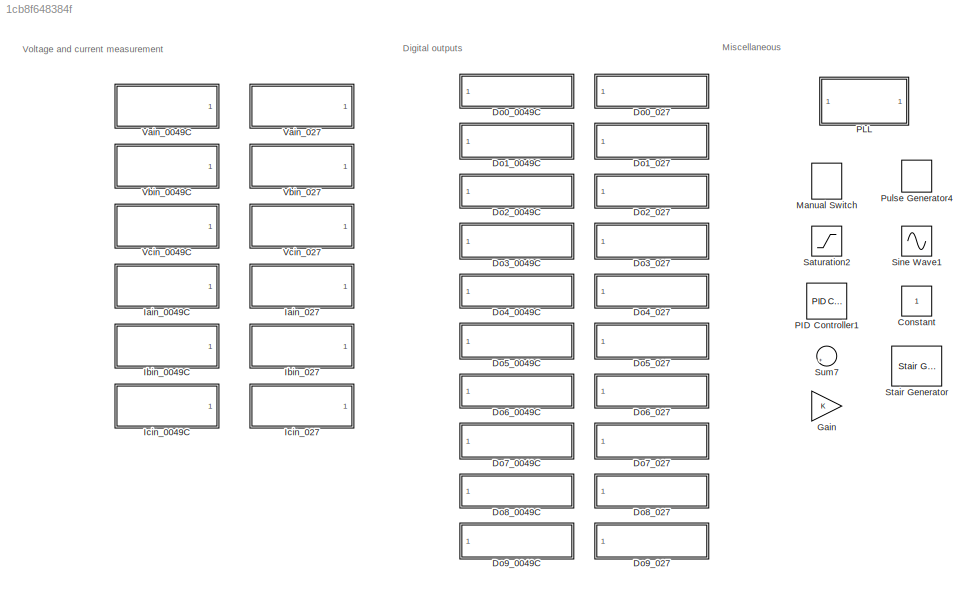
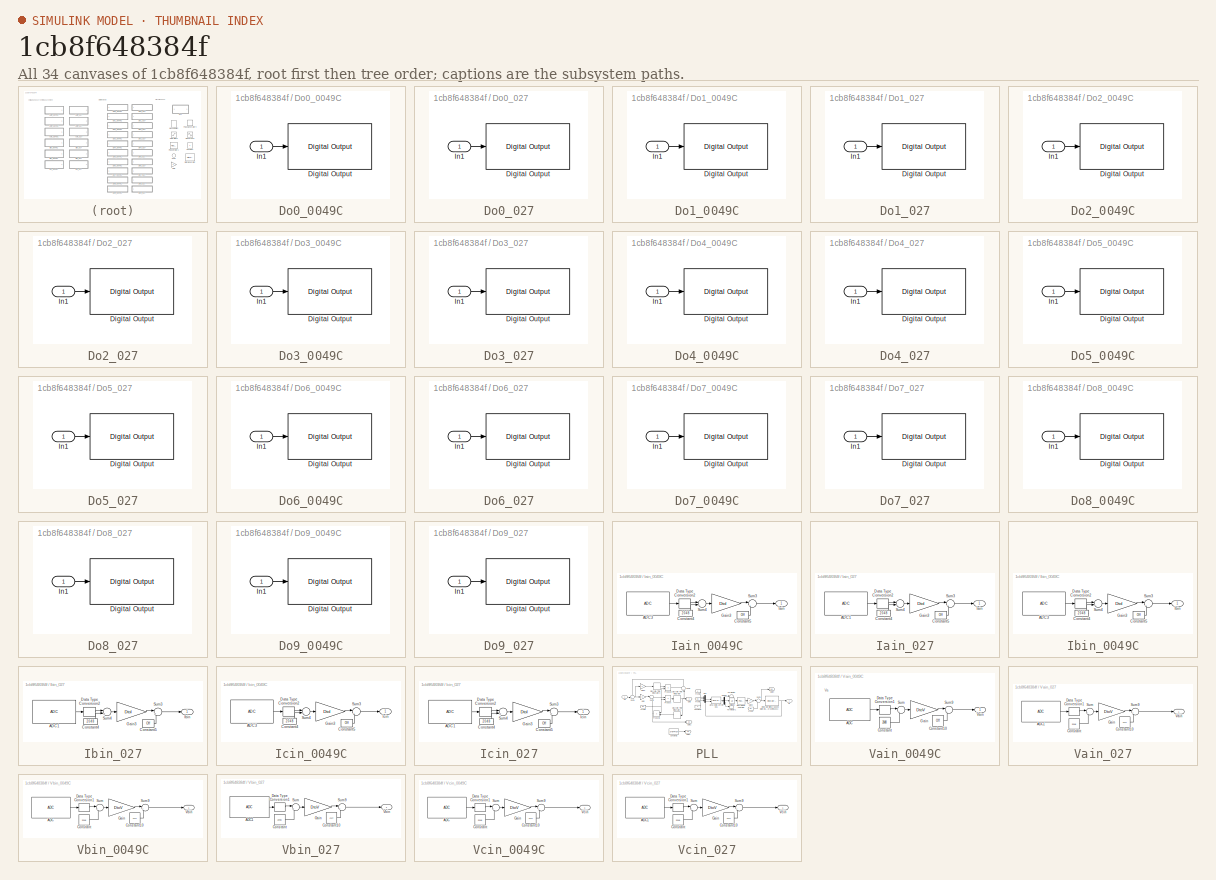
[diagram: thumbnail index - all 34 canvases of the model, root first then tree order]
MODEL slx_1cb8f648384f
KIND library
CONFIG AbsTol = auto
CONFIG EnableMultiTasking = off
CONFIG FixedStep = auto
CONFIG MaxStep = auto
CONFIG MinStep = auto
CONFIG RelTol = 1e-3
CONFIG SampleTimeConstraint = Unconstrained
CONFIG SolverName = VariableStepAuto
CONFIG StartTime = 0.0
CONFIG StopTime = 10.0
BLOCK [Constant] Constant
BLOCK [SubSystem] Do0_0049C
  Ports = [1]
  RequestExecContextInheritance = off
BLOCK [Reference] Do0_0049C/Digital Output  REF=c28004xlib/Digital Output
  Ports = [1]
  SourceBlock = c28004xlib/Digital Output
  SourceProductBaseCode = TIC2000
  SourceType = F28004x GPIO Digital Output
  UserDataPersistent = on
BLOCK [Inport] Do0_0049C/In1
BLOCK [SubSystem] Do0_027
  Ports = [1]
  RequestExecContextInheritance = off
BLOCK [Reference] Do0_027/Digital Output  REF=c2802xlib/Digital Output
  Ports = [1]
  SourceBlock = c2802xlib/Digital Output
  SourceProductBaseCode = TIC2000
  SourceType = C2802x GPIO Digital Output
  UserDataPersistent = on
BLOCK [Inport] Do0_027/In1
BLOCK [SubSystem] Do1_0049C
  Ports = [1]
  RequestExecContextInheritance = off
BLOCK [Reference] Do1_0049C/Digital Output  REF=c28004xlib/Digital Output
  Ports = [1]
  SourceBlock = c28004xlib/Digital Output
  SourceProductBaseCode = TIC2000
  SourceType = F28004x GPIO Digital Output
  UserDataPersistent = on
BLOCK [Inport] Do1_0049C/In1
BLOCK [SubSystem] Do1_027
  Ports = [1]
  RequestExecContextInheritance = off
BLOCK [Reference] Do1_027/Digital Output  REF=c2802xlib/Digital Output
  Ports = [1]
  SourceBlock = c2802xlib/Digital Output
  SourceProductBaseCode = TIC2000
  SourceType = C2802x GPIO Digital Output
  UserDataPersistent = on
BLOCK [Inport] Do1_027/In1
BLOCK [SubSystem] Do2_0049C
  Ports = [1]
  RequestExecContextInheritance = off
BLOCK [Reference] Do2_0049C/Digital Output  REF=c28004xlib/Digital Output
  Ports = [1]
  SourceBlock = c28004xlib/Digital Output
  SourceProductBaseCode = TIC2000
  SourceType = F28004x GPIO Digital Output
  UserDataPersistent = on
BLOCK [Inport] Do2_0049C/In1
BLOCK [SubSystem] Do2_027
  Ports = [1]
  RequestExecContextInheritance = off
BLOCK [Reference] Do2_027/Digital Output  REF=c2802xlib/Digital Output
  Ports = [1]
  SourceBlock = c2802xlib/Digital Output
  SourceProductBaseCode = TIC2000
  SourceType = C2802x GPIO Digital Output
  UserDataPersistent = on
BLOCK [Inport] Do2_027/In1
BLOCK [SubSystem] Do3_0049C
  Ports = [1]
  RequestExecContextInheritance = off
BLOCK [Reference] Do3_0049C/Digital Output  REF=c28004xlib/Digital Output
  Ports = [1]
  SourceBlock = c28004xlib/Digital Output
  SourceProductBaseCode = TIC2000
  SourceType = F28004x GPIO Digital Output
  UserDataPersistent = on
BLOCK [Inport] Do3_0049C/In1
BLOCK [SubSystem] Do3_027
  Ports = [1]
  RequestExecContextInheritance = off
BLOCK [Reference] Do3_027/Digital Output  REF=c2802xlib/Digital Output
  Ports = [1]
  SourceBlock = c2802xlib/Digital Output
  SourceProductBaseCode = TIC2000
  SourceType = C2802x GPIO Digital Output
  UserDataPersistent = on
BLOCK [Inport] Do3_027/In1
BLOCK [SubSystem] Do4_0049C
  Ports = [1]
  RequestExecContextInheritance = off
BLOCK [Reference] Do4_0049C/Digital Output  REF=c28004xlib/Digital Output
  Ports = [1]
  SourceBlock = c28004xlib/Digital Output
  SourceProductBaseCode = TIC2000
  SourceType = F28004x GPIO Digital Output
  UserDataPersistent = on
BLOCK [Inport] Do4_0049C/In1
BLOCK [SubSystem] Do4_027
  Ports = [1]
  RequestExecContextInheritance = off
BLOCK [Reference] Do4_027/Digital Output  REF=c2802xlib/Digital Output
  Ports = [1]
  SourceBlock = c2802xlib/Digital Output
  SourceProductBaseCode = TIC2000
  SourceType = C2802x GPIO Digital Output
  UserDataPersistent = on
BLOCK [Inport] Do4_027/In1
BLOCK [SubSystem] Do5_0049C
  Ports = [1]
  RequestExecContextInheritance = off
BLOCK [Reference] Do5_0049C/Digital Output  REF=c28004xlib/Digital Output
  Ports = [1]
  SourceBlock = c28004xlib/Digital Output
  SourceProductBaseCode = TIC2000
  SourceType = F28004x GPIO Digital Output
  UserDataPersistent = on
BLOCK [Inport] Do5_0049C/In1
BLOCK [SubSystem] Do5_027
  Ports = [1]
  RequestExecContextInheritance = off
BLOCK [Reference] Do5_027/Digital Output  REF=c2802xlib/Digital Output
  Ports = [1]
  SourceBlock = c2802xlib/Digital Output
  SourceProductBaseCode = TIC2000
  SourceType = C2802x GPIO Digital Output
  UserDataPersistent = on
BLOCK [Inport] Do5_027/In1
BLOCK [SubSystem] Do6_0049C
  Ports = [1]
  RequestExecContextInheritance = off
BLOCK [Reference] Do6_0049C/Digital Output  REF=c28004xlib/Digital Output
  Ports = [1]
  SourceBlock = c28004xlib/Digital Output
  SourceProductBaseCode = TIC2000
  SourceType = F28004x GPIO Digital Output
  UserDataPersistent = on
BLOCK [Inport] Do6_0049C/In1
BLOCK [SubSystem] Do6_027
  Ports = [1]
  RequestExecContextInheritance = off
BLOCK [Reference] Do6_027/Digital Output  REF=c2802xlib/Digital Output
  Ports = [1]
  SourceBlock = c2802xlib/Digital Output
  SourceProductBaseCode = TIC2000
  SourceType = C2802x GPIO Digital Output
  UserDataPersistent = on
BLOCK [Inport] Do6_027/In1
BLOCK [SubSystem] Do7_0049C
  Ports = [1]
  RequestExecContextInheritance = off
BLOCK [Reference] Do7_0049C/Digital Output  REF=c28004xlib/Digital Output
  Ports = [1]
  SourceBlock = c28004xlib/Digital Output
  SourceProductBaseCode = TIC2000
  SourceType = F28004x GPIO Digital Output
  UserDataPersistent = on
BLOCK [Inport] Do7_0049C/In1
BLOCK [SubSystem] Do7_027
  Ports = [1]
  RequestExecContextInheritance = off
BLOCK [Reference] Do7_027/Digital Output  REF=c2802xlib/Digital Output
  Ports = [1]
  SourceBlock = c2802xlib/Digital Output
  SourceProductBaseCode = TIC2000
  SourceType = C2802x GPIO Digital Output
  UserDataPersistent = on
BLOCK [Inport] Do7_027/In1
BLOCK [SubSystem] Do8_0049C
  Ports = [1]
  RequestExecContextInheritance = off
BLOCK [Reference] Do8_0049C/Digital Output  REF=c28004xlib/Digital Output
  Ports = [1]
  SourceBlock = c28004xlib/Digital Output
  SourceProductBaseCode = TIC2000
  SourceType = F28004x GPIO Digital Output
  UserDataPersistent = on
BLOCK [Inport] Do8_0049C/In1
BLOCK [SubSystem] Do8_027
  Ports = [1]
  RequestExecContextInheritance = off
BLOCK [Reference] Do8_027/Digital Output  REF=c2802xlib/Digital Output
  Ports = [1]
  SourceBlock = c2802xlib/Digital Output
  SourceProductBaseCode = TIC2000
  SourceType = C2802x GPIO Digital Output
  UserDataPersistent = on
BLOCK [Inport] Do8_027/In1
BLOCK [SubSystem] Do9_0049C
  Ports = [1]
  RequestExecContextInheritance = off
BLOCK [Reference] Do9_0049C/Digital Output  REF=c28004xlib/Digital Output
  Ports = [1]
  SourceBlock = c28004xlib/Digital Output
  SourceProductBaseCode = TIC2000
  SourceType = F28004x GPIO Digital Output
  UserDataPersistent = on
BLOCK [Inport] Do9_0049C/In1
BLOCK [SubSystem] Do9_027
  Ports = [1]
  RequestExecContextInheritance = off
BLOCK [Reference] Do9_027/Digital Output  REF=c2802xlib/Digital Output
  Ports = [1]
  SourceBlock = c2802xlib/Digital Output
  SourceProductBaseCode = TIC2000
  SourceType = C2802x GPIO Digital Output
  UserDataPersistent = on
BLOCK [Inport] Do9_027/In1
BLOCK [Gain] Gain
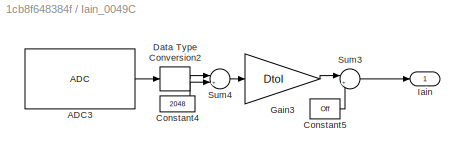
BLOCK [SubSystem] Iain_0049C
  Ports = [0, 1]
  RequestExecContextInheritance = off
BLOCK [Reference] Iain_0049C/ADC3  REF=c2802xlib/ADC
  Ports = [0, 1]
  SourceBlock = c2802xlib/ADC
  SourceProductBaseCode = TIC2000
  SourceType = C2802x/03x/05x/06x/M3x/37x/07x/004x/38x/002x ADC
  UserDataPersistent = on
BLOCK [Constant] Iain_0049C/Constant4
  Value = 2048
BLOCK [Constant] Iain_0049C/Constant5
  Value = Off
BLOCK [DataTypeConversion] Iain_0049C/Data Type Conversion2
  OutDataTypeStr = single
  RndMeth = Floor
  SaturateOnIntegerOverflow = off
BLOCK [Gain] Iain_0049C/Gain3
  Gain = DtoI
BLOCK [Outport] Iain_0049C/Iain
BLOCK [Sum] Iain_0049C/Sum3
  Inputs = |+-
  Ports = [2, 1]
BLOCK [Sum] Iain_0049C/Sum4
  Inputs = |+-
  Ports = [2, 1]
BLOCK [SubSystem] Iain_027
  Ports = [0, 1]
  RequestExecContextInheritance = off
BLOCK [Reference] Iain_027/ADC1  REF=c2802xlib/ADC
  Ports = [0, 1]
  SourceBlock = c2802xlib/ADC
  SourceProductBaseCode = TIC2000
  SourceType = C2802x/03x/05x/06x/M3x/37x/07x/004x/38x/002x ADC
  UserDataPersistent = on
BLOCK [Constant] Iain_027/Constant4
  Value = 2048
BLOCK [Constant] Iain_027/Constant5
  Value = Off
BLOCK [DataTypeConversion] Iain_027/Data Type Conversion2
  OutDataTypeStr = single
  RndMeth = Floor
  SaturateOnIntegerOverflow = off
BLOCK [Gain] Iain_027/Gain3
  Gain = DtoI
BLOCK [Outport] Iain_027/Iain
BLOCK [Sum] Iain_027/Sum3
  Inputs = |+-
  Ports = [2, 1]
BLOCK [Sum] Iain_027/Sum4
  Inputs = |+-
  Ports = [2, 1]
BLOCK [SubSystem] Ibin_0049C
  Ports = [0, 1]
  RequestExecContextInheritance = off
BLOCK [Reference] Ibin_0049C/ADC3  REF=c2802xlib/ADC
  Ports = [0, 1]
  SourceBlock = c2802xlib/ADC
  SourceProductBaseCode = TIC2000
  SourceType = C2802x/03x/05x/06x/M3x/37x/07x/004x/38x/002x ADC
  UserDataPersistent = on
BLOCK [Constant] Ibin_0049C/Constant4
  Value = 2048
BLOCK [Constant] Ibin_0049C/Constant5
  Value = Off
BLOCK [DataTypeConversion] Ibin_0049C/Data Type Conversion2
  OutDataTypeStr = single
  RndMeth = Floor
  SaturateOnIntegerOverflow = off
BLOCK [Gain] Ibin_0049C/Gain3
  Gain = DtoI
BLOCK [Outport] Ibin_0049C/Ibin
BLOCK [Sum] Ibin_0049C/Sum3
  Inputs = |+-
  Ports = [2, 1]
BLOCK [Sum] Ibin_0049C/Sum4
  Inputs = |+-
  Ports = [2, 1]
BLOCK [SubSystem] Ibin_027
  Ports = [0, 1]
  RequestExecContextInheritance = off
BLOCK [Reference] Ibin_027/ADC1  REF=c2802xlib/ADC
  Ports = [0, 1]
  SourceBlock = c2802xlib/ADC
  SourceProductBaseCode = TIC2000
  SourceType = C2802x/03x/05x/06x/M3x/37x/07x/004x/38x/002x ADC
  UserDataPersistent = on
BLOCK [Constant] Ibin_027/Constant4
  Value = 2048
BLOCK [Constant] Ibin_027/Constant5
  Value = Off
BLOCK [DataTypeConversion] Ibin_027/Data Type Conversion2
  OutDataTypeStr = single
  RndMeth = Floor
  SaturateOnIntegerOverflow = off
BLOCK [Gain] Ibin_027/Gain3
  Gain = DtoI
BLOCK [Outport] Ibin_027/Ibin
BLOCK [Sum] Ibin_027/Sum3
  Inputs = |+-
  Ports = [2, 1]
BLOCK [Sum] Ibin_027/Sum4
  Inputs = |+-
  Ports = [2, 1]
BLOCK [SubSystem] Icin_0049C
  Ports = [0, 1]
  RequestExecContextInheritance = off
BLOCK [Reference] Icin_0049C/ADC3  REF=c2802xlib/ADC
  Ports = [0, 1]
  SourceBlock = c2802xlib/ADC
  SourceProductBaseCode = TIC2000
  SourceType = C2802x/03x/05x/06x/M3x/37x/07x/004x/38x/002x ADC
  UserDataPersistent = on
BLOCK [Constant] Icin_0049C/Constant4
  Value = 2048
BLOCK [Constant] Icin_0049C/Constant5
  Value = Off
BLOCK [DataTypeConversion] Icin_0049C/Data Type Conversion2
  OutDataTypeStr = single
  RndMeth = Floor
  SaturateOnIntegerOverflow = off
BLOCK [Gain] Icin_0049C/Gain3
  Gain = DtoI
BLOCK [Outport] Icin_0049C/Icin
BLOCK [Sum] Icin_0049C/Sum3
  Inputs = |+-
  Ports = [2, 1]
BLOCK [Sum] Icin_0049C/Sum4
  Inputs = |+-
  Ports = [2, 1]
BLOCK [SubSystem] Icin_027
  Ports = [0, 1]
  RequestExecContextInheritance = off
BLOCK [Reference] Icin_027/ADC1  REF=c2802xlib/ADC
  Ports = [0, 1]
  SourceBlock = c2802xlib/ADC
  SourceProductBaseCode = TIC2000
  SourceType = C2802x/03x/05x/06x/M3x/37x/07x/004x/38x/002x ADC
  UserDataPersistent = on
BLOCK [Constant] Icin_027/Constant4
  Value = 2048
BLOCK [Constant] Icin_027/Constant5
  Value = Off
BLOCK [DataTypeConversion] Icin_027/Data Type Conversion2
  OutDataTypeStr = single
  RndMeth = Floor
  SaturateOnIntegerOverflow = off
BLOCK [Gain] Icin_027/Gain3
  Gain = DtoI
BLOCK [Outport] Icin_027/Icin
BLOCK [Sum] Icin_027/Sum3
  Inputs = |+-
  Ports = [2, 1]
BLOCK [Sum] Icin_027/Sum4
  Inputs = |+-
  Ports = [2, 1]
BLOCK [ManualSwitch] Manual Switch
  CurrentSetting = 0
BLOCK [Reference] PID Controller1  REF=pid_lib/PID Controller
  Ports = [1, 1]
  SourceBlock = pid_lib/PID Controller
  SourceProductBaseCode = SL
  SourceType = PID 1dof
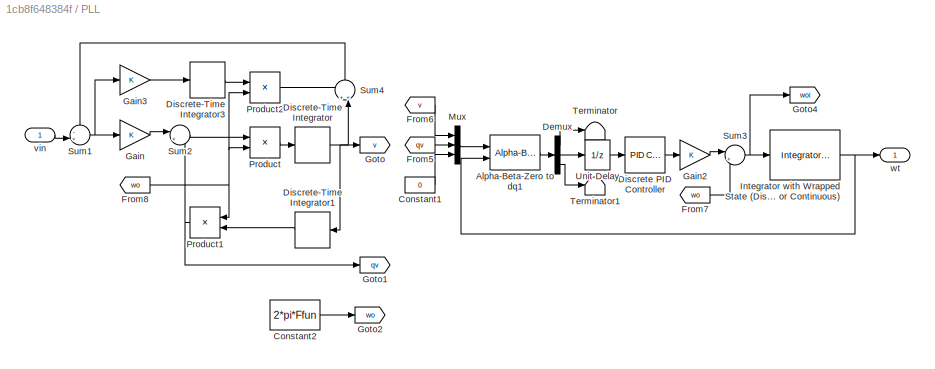
BLOCK [SubSystem] PLL
  Ports = [1, 1]
  RequestExecContextInheritance = off
BLOCK [Reference] PLL/Alpha-Beta-Zero to dq1  REF=spsAlphaBetaZerotodq0Lib/Alpha-Beta-Zero
to dq0
  Ports = [2, 1]
  SourceBlock = spsAlphaBetaZerotodq0Lib/Alpha-Beta-Zero\nto dq0
  SourceProductBaseCode = PS
  SourceType = Alpha-Beta-Zero to dq0 Transformation
BLOCK [Constant] PLL/Constant1
  Value = 0
BLOCK [Constant] PLL/Constant2
  Value = 2*pi*Ffun
BLOCK [Demux] PLL/Demux
  Outputs = 3
  Ports = [1, 3]
BLOCK [Reference] PLL/Discrete PID Controller  REF=pid_lib/PID Controller
  Ports = [1, 1]
  SourceBlock = pid_lib/PID Controller
  SourceProductBaseCode = SL
  SourceType = PID 1dof
BLOCK [DiscreteIntegrator] PLL/Discrete-Time Integrator
  ICPrevOutput = DiscIntNeverNeededParam
  ICPrevScaledInput = DiscIntNeverNeededParam
  InitialConditionSetting = Auto
  Ports = [1, 1]
  SampleTime = Ts
BLOCK [DiscreteIntegrator] PLL/Discrete-Time Integrator1
  ICPrevOutput = DiscIntNeverNeededParam
  ICPrevScaledInput = DiscIntNeverNeededParam
  InitialConditionSetting = Auto
  Ports = [1, 1]
  SampleTime = Ts
BLOCK [DiscreteIntegrator] PLL/Discrete-Time Integrator3
  ICPrevOutput = DiscIntNeverNeededParam
  ICPrevScaledInput = DiscIntNeverNeededParam
  InitialConditionSetting = Auto
  Ports = [1, 1]
  SampleTime = Ts
BLOCK [From] PLL/From5
  GotoTag = qv
BLOCK [From] PLL/From6
  GotoTag = v
BLOCK [From] PLL/From7
  GotoTag = wo
BLOCK [From] PLL/From8
  GotoTag = wo
BLOCK [Gain] PLL/Gain
BLOCK [Gain] PLL/Gain2
BLOCK [Gain] PLL/Gain3
BLOCK [Goto] PLL/Goto
  GotoTag = v
BLOCK [Goto] PLL/Goto1
  GotoTag = qv
BLOCK [Goto] PLL/Goto2
  GotoTag = wo
BLOCK [Goto] PLL/Goto4
  GotoTag = woi
BLOCK [Reference] PLL/Integrator with Wrapped State (Discrete or Continuous)  REF=eeGeneralControl/Integrator with
Wrapped State
(Discrete or Continuous)
  Ports = [1, 1]
  SourceBlock = eeGeneralControl/Integrator with\nWrapped State\n(Discrete or Continuous)
  SourceProductBaseCode = PS
  SourceType = Integrator with Wrapped State (Discrete or Continuous)
BLOCK [Mux] PLL/Mux
  DisplayOption = bar
  Inputs = 3
  Ports = [3, 1]
BLOCK [Product] PLL/Product
  Ports = [2, 1]
BLOCK [Product] PLL/Product1
  Ports = [2, 1]
BLOCK [Product] PLL/Product2
  Ports = [2, 1]
BLOCK [Sum] PLL/Sum1
  Inputs = -+|
  Ports = [2, 1]
BLOCK [Sum] PLL/Sum2
  Inputs = |+-
  Ports = [2, 1]
BLOCK [Sum] PLL/Sum3
  Inputs = |++
  Ports = [2, 1]
BLOCK [Sum] PLL/Sum4
  Inputs = ++|
  NameLocation = right
  Ports = [2, 1]
BLOCK [Terminator] PLL/Terminator
BLOCK [Terminator] PLL/Terminator1
BLOCK [UnitDelay] PLL/Unit Delay
  HasFrameUpgradeWarning = on
  SampleTime = -1
BLOCK [Inport] PLL/vin
BLOCK [Outport] PLL/wt
BLOCK [DiscretePulseGenerator] Pulse Generator4
  Period = 0.6
  Ports = [0, 1]
  PulseType = Time based
  PulseWidth = 50
BLOCK [Saturate] Saturation2
  LowerLimit = 100
  UpperLimit = 4900
BLOCK [Sin] Sine Wave1
  Frequency = 2*pi*60
  Ports = [0, 1]
BLOCK [Reference] Stair Generator  REF=eeStairGenerator/Stair Generator
  Ports = [0, 1]
  SourceBlock = eeStairGenerator/Stair Generator
  SourceProductBaseCode = PS
  SourceType = Stair Generator
BLOCK [Sum] Sum7
  Inputs = |++
  Ports = [2, 1]
BLOCK [SubSystem] Vain_0049C
  Ports = [0, 1]
  RequestExecContextInheritance = off
BLOCK [Reference] Vain_0049C/ADC  REF=c2802xlib/ADC
  Ports = [0, 1]
  SourceBlock = c2802xlib/ADC
  SourceProductBaseCode = TIC2000
  SourceType = C2802x/03x/05x/06x/M3x/37x/07x/004x/38x/002x ADC
  UserDataPersistent = on
BLOCK [Constant] Vain_0049C/Constant
  Value = 2048
BLOCK [Constant] Vain_0049C/Constant10
  Value = Off
BLOCK [DataTypeConversion] Vain_0049C/Data Type Conversion1
  OutDataTypeStr = single
  RndMeth = Floor
  SaturateOnIntegerOverflow = off
BLOCK [Gain] Vain_0049C/Gain
  Gain = DtoV
BLOCK [Sum] Vain_0049C/Sum
  Inputs = |+-
  Ports = [2, 1]
BLOCK [Sum] Vain_0049C/Sum9
  Inputs = |+-
  Ports = [2, 1]
BLOCK [Outport] Vain_0049C/Vain
BLOCK [SubSystem] Vain_027
  Ports = [0, 1]
  RequestExecContextInheritance = off
BLOCK [Reference] Vain_027/ADC1  REF=c2802xlib/ADC
  Ports = [0, 1]
  SourceBlock = c2802xlib/ADC
  SourceProductBaseCode = TIC2000
  SourceType = C2802x/03x/05x/06x/M3x/37x/07x/004x/38x/002x ADC
  UserDataPersistent = on
BLOCK [Constant] Vain_027/Constant
  Value = 2048
BLOCK [Constant] Vain_027/Constant10
  Value = Off
BLOCK [DataTypeConversion] Vain_027/Data Type Conversion1
  OutDataTypeStr = single
  RndMeth = Floor
  SaturateOnIntegerOverflow = off
BLOCK [Gain] Vain_027/Gain
  Gain = DtoV
BLOCK [Sum] Vain_027/Sum
  Inputs = |+-
  Ports = [2, 1]
BLOCK [Sum] Vain_027/Sum9
  Inputs = |+-
  Ports = [2, 1]
BLOCK [Outport] Vain_027/Vain
BLOCK [SubSystem] Vbin_0049C
  Ports = [0, 1]
  RequestExecContextInheritance = off
BLOCK [Reference] Vbin_0049C/ADC  REF=c2802xlib/ADC
  Ports = [0, 1]
  SourceBlock = c2802xlib/ADC
  SourceProductBaseCode = TIC2000
  SourceType = C2802x/03x/05x/06x/M3x/37x/07x/004x/38x/002x ADC
  UserDataPersistent = on
BLOCK [Constant] Vbin_0049C/Constant
  Value = 2048
BLOCK [Constant] Vbin_0049C/Constant10
  Value = Off
BLOCK [DataTypeConversion] Vbin_0049C/Data Type Conversion1
  OutDataTypeStr = single
  RndMeth = Floor
  SaturateOnIntegerOverflow = off
BLOCK [Gain] Vbin_0049C/Gain
  Gain = DtoV
BLOCK [Sum] Vbin_0049C/Sum
  Inputs = |+-
  Ports = [2, 1]
BLOCK [Sum] Vbin_0049C/Sum9
  Inputs = |+-
  Ports = [2, 1]
BLOCK [Outport] Vbin_0049C/Vbin
BLOCK [SubSystem] Vbin_027
  Ports = [0, 1]
  RequestExecContextInheritance = off
BLOCK [Reference] Vbin_027/ADC1  REF=c2802xlib/ADC
  Ports = [0, 1]
  SourceBlock = c2802xlib/ADC
  SourceProductBaseCode = TIC2000
  SourceType = C2802x/03x/05x/06x/M3x/37x/07x/004x/38x/002x ADC
  UserDataPersistent = on
BLOCK [Constant] Vbin_027/Constant
  Value = 2048
BLOCK [Constant] Vbin_027/Constant10
  Value = Off
BLOCK [DataTypeConversion] Vbin_027/Data Type Conversion1
  OutDataTypeStr = single
  RndMeth = Floor
  SaturateOnIntegerOverflow = off
BLOCK [Gain] Vbin_027/Gain
  Gain = DtoV
BLOCK [Sum] Vbin_027/Sum
  Inputs = |+-
  Ports = [2, 1]
BLOCK [Sum] Vbin_027/Sum9
  Inputs = |+-
  Ports = [2, 1]
BLOCK [Outport] Vbin_027/Vbin
BLOCK [SubSystem] Vcin_0049C
  Ports = [0, 1]
  RequestExecContextInheritance = off
BLOCK [Reference] Vcin_0049C/ADC  REF=c2802xlib/ADC
  Ports = [0, 1]
  SourceBlock = c2802xlib/ADC
  SourceProductBaseCode = TIC2000
  SourceType = C2802x/03x/05x/06x/M3x/37x/07x/004x/38x/002x ADC
  UserDataPersistent = on
BLOCK [Constant] Vcin_0049C/Constant
  Value = 2048
BLOCK [Constant] Vcin_0049C/Constant10
  Value = Off
BLOCK [DataTypeConversion] Vcin_0049C/Data Type Conversion1
  OutDataTypeStr = single
  RndMeth = Floor
  SaturateOnIntegerOverflow = off
BLOCK [Gain] Vcin_0049C/Gain
  Gain = DtoV
BLOCK [Sum] Vcin_0049C/Sum
  Inputs = |+-
  Ports = [2, 1]
BLOCK [Sum] Vcin_0049C/Sum9
  Inputs = |+-
  Ports = [2, 1]
BLOCK [Outport] Vcin_0049C/Vcin
BLOCK [SubSystem] Vcin_027
  Ports = [0, 1]
  RequestExecContextInheritance = off
BLOCK [Reference] Vcin_027/ADC1  REF=c2802xlib/ADC
  Ports = [0, 1]
  SourceBlock = c2802xlib/ADC
  SourceProductBaseCode = TIC2000
  SourceType = C2802x/03x/05x/06x/M3x/37x/07x/004x/38x/002x ADC
  UserDataPersistent = on
BLOCK [Constant] Vcin_027/Constant
  Value = 2048
BLOCK [Constant] Vcin_027/Constant10
  Value = Off
BLOCK [DataTypeConversion] Vcin_027/Data Type Conversion1
  OutDataTypeStr = single
  RndMeth = Floor
  SaturateOnIntegerOverflow = off
BLOCK [Gain] Vcin_027/Gain
  Gain = DtoV
BLOCK [Sum] Vcin_027/Sum
  Inputs = |+-
  Ports = [2, 1]
BLOCK [Sum] Vcin_027/Sum9
  Inputs = |+-
  Ports = [2, 1]
BLOCK [Outport] Vcin_027/Vcin
ANNOTATION (root): Digital outputs
ANNOTATION (root): Miscellaneous
ANNOTATION (root): Voltage and current measurement
ANNOTATION Vain_0049C: Va
LINE Do0_0049C/In1:1 -> Do0_0049C/Digital Output:1
LINE Do0_027/In1:1 -> Do0_027/Digital Output:1
LINE Do1_0049C/In1:1 -> Do1_0049C/Digital Output:1
LINE Do1_027/In1:1 -> Do1_027/Digital Output:1
LINE Do2_0049C/In1:1 -> Do2_0049C/Digital Output:1
LINE Do2_027/In1:1 -> Do2_027/Digital Output:1
LINE Do3_0049C/In1:1 -> Do3_0049C/Digital Output:1
LINE Do3_027/In1:1 -> Do3_027/Digital Output:1
LINE Do4_0049C/In1:1 -> Do4_0049C/Digital Output:1
LINE Do4_027/In1:1 -> Do4_027/Digital Output:1
LINE Do5_0049C/In1:1 -> Do5_0049C/Digital Output:1
LINE Do5_027/In1:1 -> Do5_027/Digital Output:1
LINE Do6_0049C/In1:1 -> Do6_0049C/Digital Output:1
LINE Do6_027/In1:1 -> Do6_027/Digital Output:1
LINE Do7_0049C/In1:1 -> Do7_0049C/Digital Output:1
LINE Do7_027/In1:1 -> Do7_027/Digital Output:1
LINE Do8_0049C/In1:1 -> Do8_0049C/Digital Output:1
LINE Do8_027/In1:1 -> Do8_027/Digital Output:1
LINE Do9_0049C/In1:1 -> Do9_0049C/Digital Output:1
LINE Do9_027/In1:1 -> Do9_027/Digital Output:1
LINE Iain_0049C/ADC3:1 -> Iain_0049C/Data Type Conversion2:1
LINE Iain_0049C/Constant4:1 -> Iain_0049C/Sum4:2
LINE Iain_0049C/Constant5:1 -> Iain_0049C/Sum3:2
LINE Iain_0049C/Data Type Conversion2:1 -> Iain_0049C/Sum4:1
LINE Iain_0049C/Gain3:1 -> Iain_0049C/Sum3:1
LINE Iain_0049C/Sum3:1 -> Iain_0049C/Iain:1
LINE Iain_0049C/Sum4:1 -> Iain_0049C/Gain3:1
LINE Iain_027/ADC1:1 -> Iain_027/Data Type Conversion2:1
LINE Iain_027/Constant4:1 -> Iain_027/Sum4:2
LINE Iain_027/Constant5:1 -> Iain_027/Sum3:2
LINE Iain_027/Data Type Conversion2:1 -> Iain_027/Sum4:1
LINE Iain_027/Gain3:1 -> Iain_027/Sum3:1
LINE Iain_027/Sum3:1 -> Iain_027/Iain:1
LINE Iain_027/Sum4:1 -> Iain_027/Gain3:1
LINE Ibin_0049C/ADC3:1 -> Ibin_0049C/Data Type Conversion2:1
LINE Ibin_0049C/Constant4:1 -> Ibin_0049C/Sum4:2
LINE Ibin_0049C/Constant5:1 -> Ibin_0049C/Sum3:2
LINE Ibin_0049C/Data Type Conversion2:1 -> Ibin_0049C/Sum4:1
LINE Ibin_0049C/Gain3:1 -> Ibin_0049C/Sum3:1
LINE Ibin_0049C/Sum3:1 -> Ibin_0049C/Ibin:1
LINE Ibin_0049C/Sum4:1 -> Ibin_0049C/Gain3:1
LINE Ibin_027/ADC1:1 -> Ibin_027/Data Type Conversion2:1
LINE Ibin_027/Constant4:1 -> Ibin_027/Sum4:2
LINE Ibin_027/Constant5:1 -> Ibin_027/Sum3:2
LINE Ibin_027/Data Type Conversion2:1 -> Ibin_027/Sum4:1
LINE Ibin_027/Gain3:1 -> Ibin_027/Sum3:1
LINE Ibin_027/Sum3:1 -> Ibin_027/Ibin:1
LINE Ibin_027/Sum4:1 -> Ibin_027/Gain3:1
LINE Icin_0049C/ADC3:1 -> Icin_0049C/Data Type Conversion2:1
LINE Icin_0049C/Constant4:1 -> Icin_0049C/Sum4:2
LINE Icin_0049C/Constant5:1 -> Icin_0049C/Sum3:2
LINE Icin_0049C/Data Type Conversion2:1 -> Icin_0049C/Sum4:1
LINE Icin_0049C/Gain3:1 -> Icin_0049C/Sum3:1
LINE Icin_0049C/Sum3:1 -> Icin_0049C/Icin:1
LINE Icin_0049C/Sum4:1 -> Icin_0049C/Gain3:1
LINE Icin_027/ADC1:1 -> Icin_027/Data Type Conversion2:1
LINE Icin_027/Constant4:1 -> Icin_027/Sum4:2
LINE Icin_027/Constant5:1 -> Icin_027/Sum3:2
LINE Icin_027/Data Type Conversion2:1 -> Icin_027/Sum4:1
LINE Icin_027/Gain3:1 -> Icin_027/Sum3:1
LINE Icin_027/Sum3:1 -> Icin_027/Icin:1
LINE Icin_027/Sum4:1 -> Icin_027/Gain3:1
LINE PLL/Alpha-Beta-Zero to dq1:1 -> PLL/Demux:1
LINE PLL/Constant1:1 -> PLL/Mux:3
LINE PLL/Constant2:1 -> PLL/Goto2:1
LINE PLL/Demux:1 -> PLL/Terminator:1
LINE PLL/Demux:2 -> PLL/Unit Delay:1
LINE PLL/Demux:3 -> PLL/Terminator1:1
LINE PLL/Discrete PID Controller:1 -> PLL/Gain2:1
LINE PLL/Discrete-Time Integrator1:1 -> PLL/Product1:2
LINE PLL/Discrete-Time Integrator3:1 -> PLL/Product2:1
NET PLL/Discrete-Time Integrator:1 -> PLL/Discrete-Time Integrator1:1, PLL/Goto:1, PLL/Sum4:2
LINE PLL/From5:1 -> PLL/Mux:2
LINE PLL/From6:1 -> PLL/Mux:1
LINE PLL/From7:1 -> PLL/Sum3:2
NET PLL/From8:1 -> PLL/Product1:1, PLL/Product2:2, PLL/Product:2
LINE PLL/Gain2:1 -> PLL/Sum3:1
LINE PLL/Gain3:1 -> PLL/Discrete-Time Integrator3:1
LINE PLL/Gain:1 -> PLL/Sum2:1
NET PLL/Integrator with Wrapped State (Discrete or Continuous):1 -> PLL/Alpha-Beta-Zero to dq1:2, PLL/wt:1
LINE PLL/Mux:1 -> PLL/Alpha-Beta-Zero to dq1:1
NET PLL/Product1:1 -> PLL/Goto1:1, PLL/Sum2:2
LINE PLL/Product2:1 -> PLL/Sum4:1
LINE PLL/Product:1 -> PLL/Discrete-Time Integrator:1
NET PLL/Sum1:1 -> PLL/Gain3:1, PLL/Gain:1
LINE PLL/Sum2:1 -> PLL/Product:1
NET PLL/Sum3:1 -> PLL/Goto4:1, PLL/Integrator with Wrapped State (Discrete or Continuous):1
LINE PLL/Sum4:1 -> PLL/Sum1:1
LINE PLL/Unit Delay:1 -> PLL/Discrete PID Controller:1
LINE PLL/vin:1 -> PLL/Sum1:2
LINE Vain_0049C/ADC:1 -> Vain_0049C/Data Type Conversion1:1
LINE Vain_0049C/Constant10:1 -> Vain_0049C/Sum9:2
LINE Vain_0049C/Constant:1 -> Vain_0049C/Sum:2
LINE Vain_0049C/Data Type Conversion1:1 -> Vain_0049C/Sum:1
LINE Vain_0049C/Gain:1 -> Vain_0049C/Sum9:1
LINE Vain_0049C/Sum9:1 -> Vain_0049C/Vain:1
LINE Vain_0049C/Sum:1 -> Vain_0049C/Gain:1
LINE Vain_027/ADC1:1 -> Vain_027/Data Type Conversion1:1
LINE Vain_027/Constant10:1 -> Vain_027/Sum9:2
LINE Vain_027/Constant:1 -> Vain_027/Sum:2
LINE Vain_027/Data Type Conversion1:1 -> Vain_027/Sum:1
LINE Vain_027/Gain:1 -> Vain_027/Sum9:1
LINE Vain_027/Sum9:1 -> Vain_027/Vain:1
LINE Vain_027/Sum:1 -> Vain_027/Gain:1
LINE Vbin_0049C/ADC:1 -> Vbin_0049C/Data Type Conversion1:1
LINE Vbin_0049C/Constant10:1 -> Vbin_0049C/Sum9:2
LINE Vbin_0049C/Constant:1 -> Vbin_0049C/Sum:2
LINE Vbin_0049C/Data Type Conversion1:1 -> Vbin_0049C/Sum:1
LINE Vbin_0049C/Gain:1 -> Vbin_0049C/Sum9:1
LINE Vbin_0049C/Sum9:1 -> Vbin_0049C/Vbin:1
LINE Vbin_0049C/Sum:1 -> Vbin_0049C/Gain:1
LINE Vbin_027/ADC1:1 -> Vbin_027/Data Type Conversion1:1
LINE Vbin_027/Constant10:1 -> Vbin_027/Sum9:2
LINE Vbin_027/Constant:1 -> Vbin_027/Sum:2
LINE Vbin_027/Data Type Conversion1:1 -> Vbin_027/Sum:1
LINE Vbin_027/Gain:1 -> Vbin_027/Sum9:1
LINE Vbin_027/Sum9:1 -> Vbin_027/Vbin:1
LINE Vbin_027/Sum:1 -> Vbin_027/Gain:1
LINE Vcin_0049C/ADC:1 -> Vcin_0049C/Data Type Conversion1:1
LINE Vcin_0049C/Constant10:1 -> Vcin_0049C/Sum9:2
LINE Vcin_0049C/Constant:1 -> Vcin_0049C/Sum:2
LINE Vcin_0049C/Data Type Conversion1:1 -> Vcin_0049C/Sum:1
LINE Vcin_0049C/Gain:1 -> Vcin_0049C/Sum9:1
LINE Vcin_0049C/Sum9:1 -> Vcin_0049C/Vcin:1
LINE Vcin_0049C/Sum:1 -> Vcin_0049C/Gain:1
LINE Vcin_027/ADC1:1 -> Vcin_027/Data Type Conversion1:1
LINE Vcin_027/Constant10:1 -> Vcin_027/Sum9:2
LINE Vcin_027/Constant:1 -> Vcin_027/Sum:2
LINE Vcin_027/Data Type Conversion1:1 -> Vcin_027/Sum:1
LINE Vcin_027/Gain:1 -> Vcin_027/Sum9:1
LINE Vcin_027/Sum9:1 -> Vcin_027/Vcin:1
LINE Vcin_027/Sum:1 -> Vcin_027/Gain:1
note: NET lines group one-source signal fan-out (src -> all destinations, sorted); 1:1 wires keep LINE
